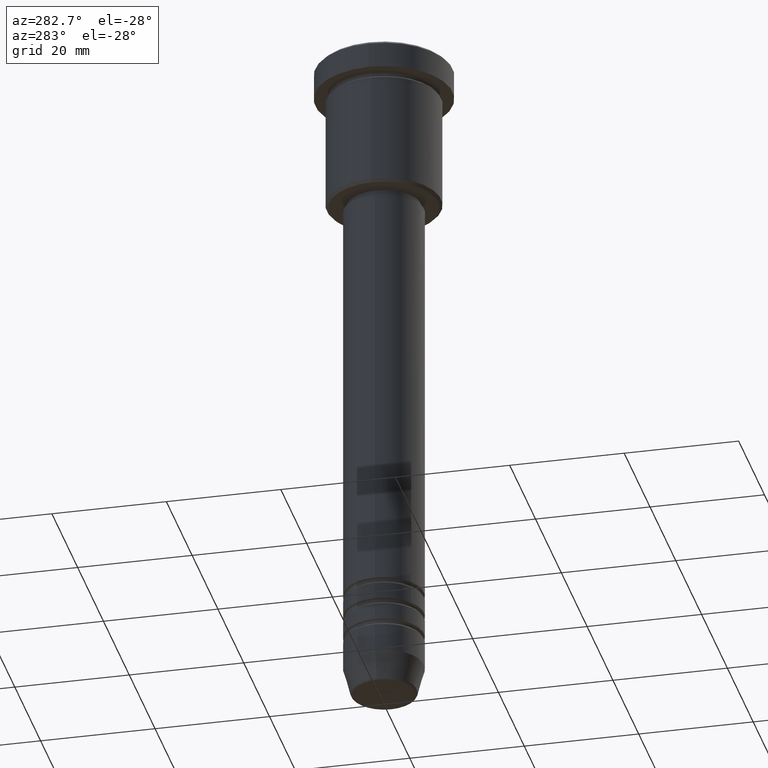
[diagram: clean part render]
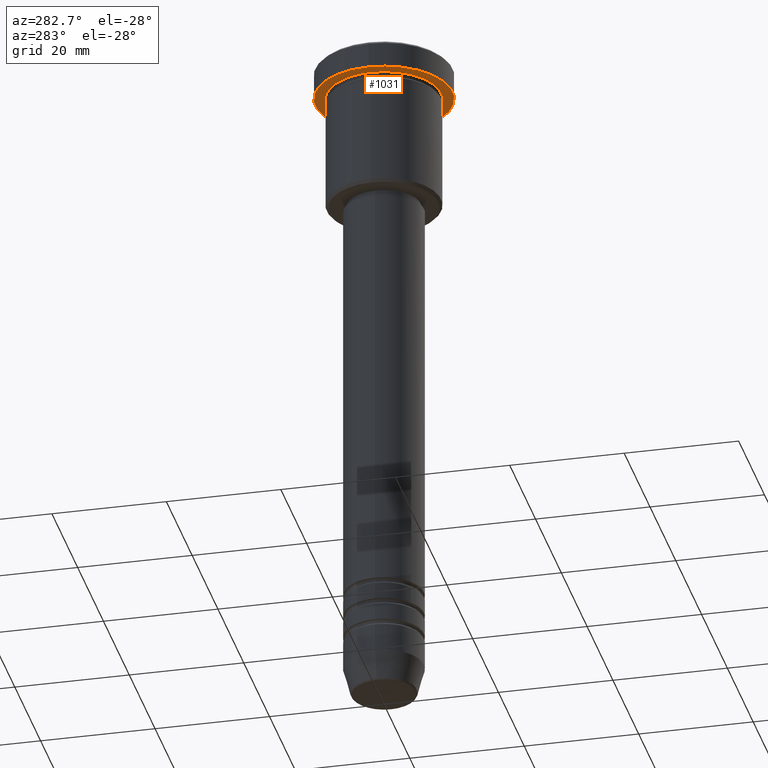
[diagram: same view with one face highlighted and labeled with its STEP entity id]
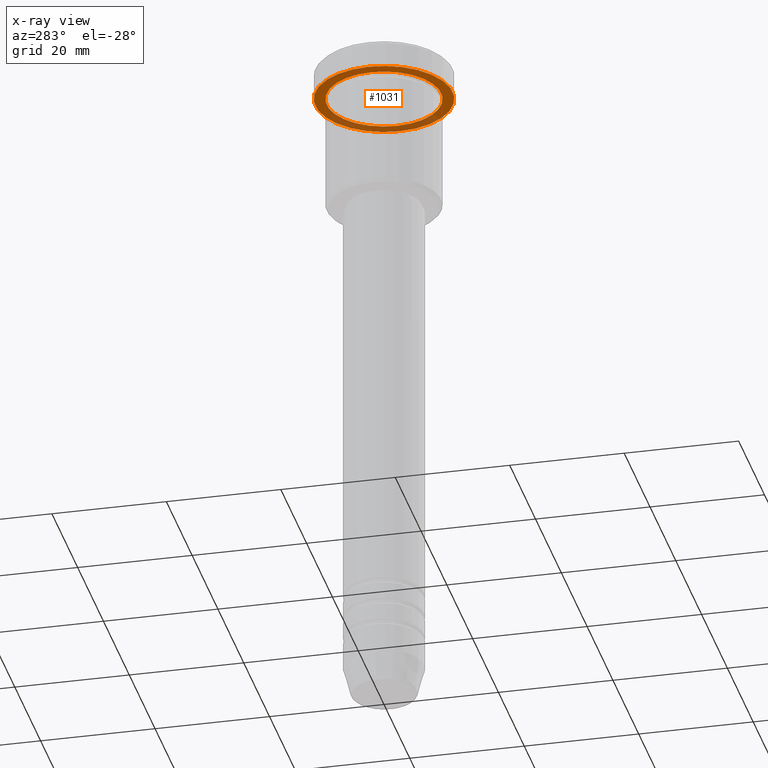
[diagram: x-ray of the same camera — body ghosted, the highlighted face saturated]
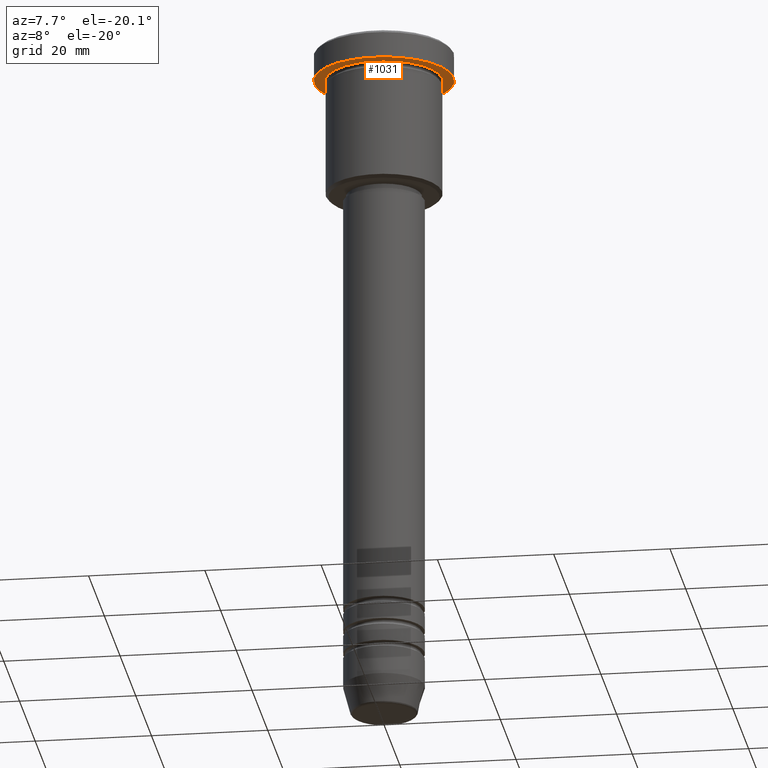
[diagram: same view with one face highlighted and labeled with its STEP entity id]
A machine part, auxiliary view. The second image highlights one B-rep face of the part: STEP entity #1031.
The next image is the same camera in x-ray: the body ghosted, the highlighted face saturated — about 30% of this face is hidden behind the body in this view.
A second angle (auxiliary view) of the same face is appended — the face is thin or edge-on in the first view.
In plain terms, the highlighted planar face has unit normal (0, 0, -1).
Its self-contained STEP definition (entity closure, byte-faithful):
#1 = DIRECTION ( 'NONE',  ( -0.000000000000000000, -0.000000000000000000, 1.000000000000000000 ) ) ;
#19 = EDGE_LOOP ( 'NONE', ( #1026, #167 ) ) ;
#35 = ORIENTED_EDGE ( 'NONE', *, *, #993, .F. ) ;
#91 = CARTESIAN_POINT ( 'NONE',  ( 10.00000000000000000, 1.224646799147353256E-15, -4.999999999999999112 ) ) ;
#105 = AXIS2_PLACEMENT_3D ( 'NONE', #134, #800, #882 ) ;
#134 = CARTESIAN_POINT ( 'NONE',  ( 0.000000000000000000, 0.000000000000000000, -5.000000000000000000 ) ) ;
#165 = VERTEX_POINT ( 'NONE', #455 ) ;
#167 = ORIENTED_EDGE ( 'NONE', *, *, #1129, .T. ) ;
#205 = DIRECTION ( 'NONE',  ( 1.000000000000000000, 0.000000000000000000, 0.000000000000000000 ) ) ;
#314 = CIRCLE ( 'NONE', #738, 12.00000000000000000 ) ;
#315 = EDGE_CURVE ( 'NONE', #359, #660, #344, .T. ) ;
#333 = FACE_BOUND ( 'NONE', #19, .T. ) ;
#338 = CARTESIAN_POINT ( 'NONE',  ( 0.000000000000000000, 12.00000000000000000, -5.000000000000000000 ) ) ;
#344 = CIRCLE ( 'NONE', #913, 10.00000000000000000 ) ;
#359 = VERTEX_POINT ( 'NONE', #396 ) ;
#360 = DIRECTION ( 'NONE',  ( -1.000000000000000000, 0.000000000000000000, -0.000000000000000000 ) ) ;
#365 = ORIENTED_EDGE ( 'NONE', *, *, #717, .F. ) ;
#389 = AXIS2_PLACEMENT_3D ( 'NONE', #456, #1, #1099 ) ;
#396 = CARTESIAN_POINT ( 'NONE',  ( -10.00000000000000000, 0.000000000000000000, -4.999999999999999112 ) ) ;
#455 = CARTESIAN_POINT ( 'NONE',  ( -12.00000000000000000, 1.469576158976823947E-15, -5.000000000000000000 ) ) ;
#456 = CARTESIAN_POINT ( 'NONE',  ( 0.000000000000000000, 0.000000000000000000, -5.000000000000000000 ) ) ;
#484 = DIRECTION ( 'NONE',  ( -1.000000000000000000, 0.000000000000000000, 0.000000000000000000 ) ) ;
#612 = CIRCLE ( 'NONE', #105, 12.00000000000000000 ) ;
#660 = VERTEX_POINT ( 'NONE', #91 ) ;
#698 = VERTEX_POINT ( 'NONE', #1169 ) ;
#705 = DIRECTION ( 'NONE',  ( 0.000000000000000000, 0.000000000000000000, -1.000000000000000000 ) ) ;
#717 = EDGE_CURVE ( 'NONE', #698, #165, #314, .T. ) ;
#738 = AXIS2_PLACEMENT_3D ( 'NONE', #755, #1131, #205 ) ;
#755 = CARTESIAN_POINT ( 'NONE',  ( 0.000000000000000000, 0.000000000000000000, -5.000000000000000000 ) ) ;
#761 = CIRCLE ( 'NONE', #389, 10.00000000000000000 ) ;
#795 = FACE_OUTER_BOUND ( 'NONE', #866, .T. ) ;
#800 = DIRECTION ( 'NONE',  ( -0.000000000000000000, -0.000000000000000000, 1.000000000000000000 ) ) ;
#866 = EDGE_LOOP ( 'NONE', ( #365, #35 ) ) ;
#872 = CARTESIAN_POINT ( 'NONE',  ( 0.000000000000000000, 0.000000000000000000, -5.000000000000000000 ) ) ;
#882 = DIRECTION ( 'NONE',  ( 1.000000000000000000, 0.000000000000000000, 0.000000000000000000 ) ) ;
#913 = AXIS2_PLACEMENT_3D ( 'NONE', #872, #1121, #484 ) ;
#993 = EDGE_CURVE ( 'NONE', #165, #698, #612, .T. ) ;
#1026 = ORIENTED_EDGE ( 'NONE', *, *, #315, .T. ) ;
#1031 = ADVANCED_FACE ( 'NONE', ( #333, #795 ), #1154, .T. ) ;
#1099 = DIRECTION ( 'NONE',  ( -1.000000000000000000, 0.000000000000000000, 0.000000000000000000 ) ) ;
#1121 = DIRECTION ( 'NONE',  ( -0.000000000000000000, -0.000000000000000000, 1.000000000000000000 ) ) ;
#1129 = EDGE_CURVE ( 'NONE', #660, #359, #761, .T. ) ;
#1131 = DIRECTION ( 'NONE',  ( -0.000000000000000000, -0.000000000000000000, 1.000000000000000000 ) ) ;
#1154 = PLANE ( 'NONE',  #1173 ) ;
#1169 = CARTESIAN_POINT ( 'NONE',  ( 12.00000000000000000, 0.000000000000000000, -5.000000000000000000 ) ) ;
#1173 = AXIS2_PLACEMENT_3D ( 'NONE', #338, #705, #360 ) ;